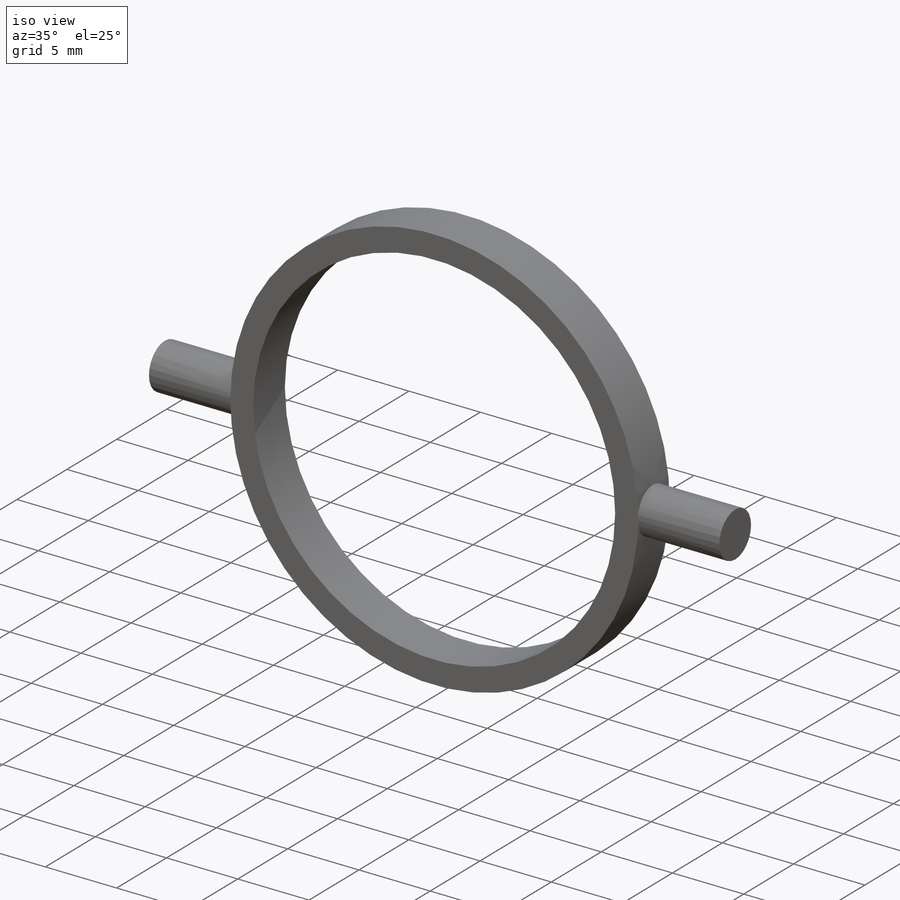
[diagram: iso view]
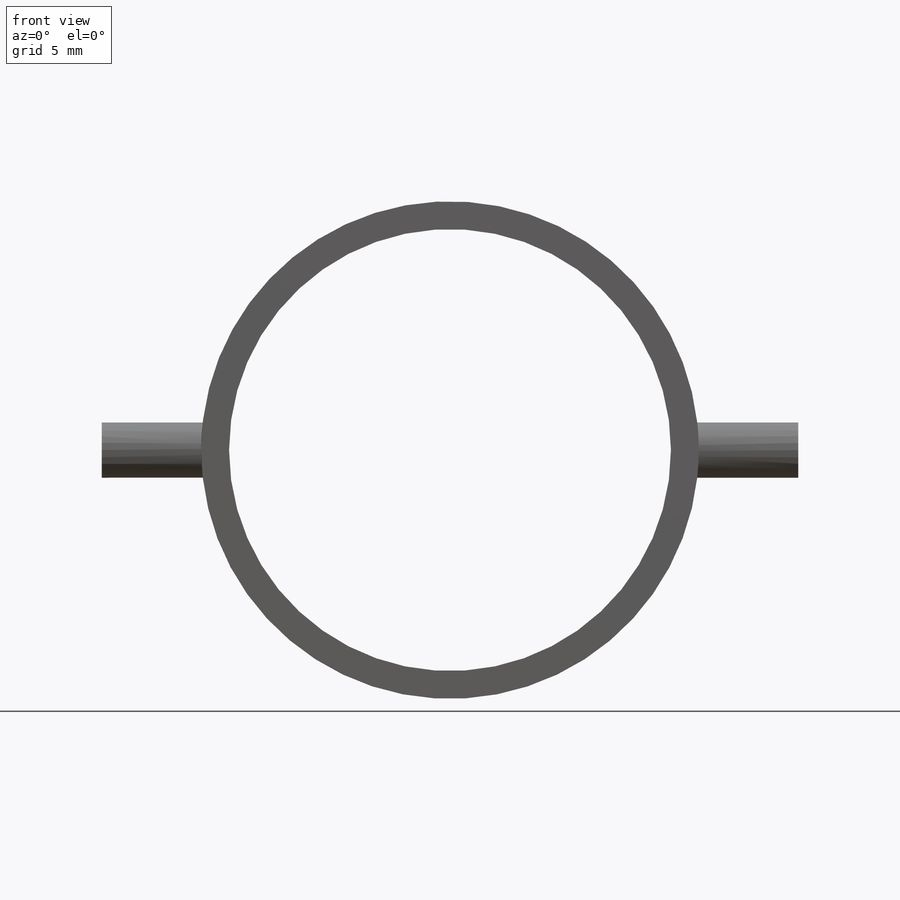
[diagram: front view]
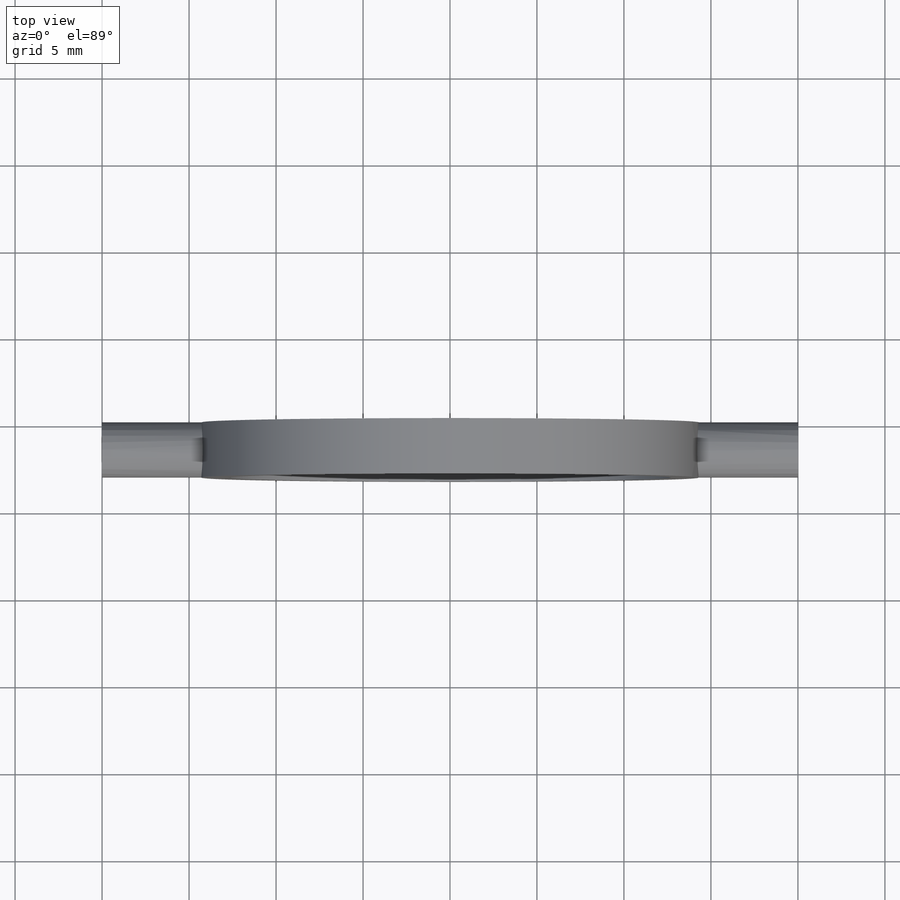
[diagram: top view]
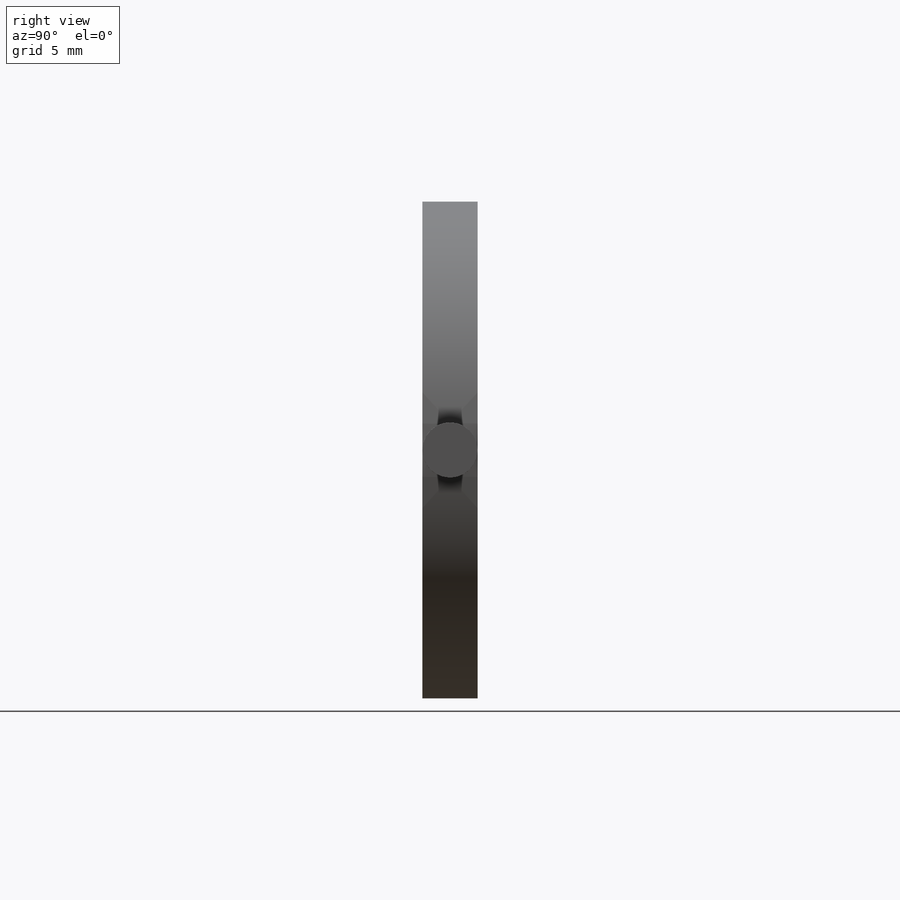
[diagram: right view]
SOLIDWORKS PART (.sldprt)
format: sldprt  version: not decoded by parser v0  size: 148,480 bytes
history: native  units: mm
features: sketch x2, extrude x2, material x1, plane x1, pattern_circular x1 (+11 scaffold rows collapsed)
feature tree (18):
  scaffold x11  (default folders/planes/origin — collapsed)
  material  "Material <not specified>"
  sketch  "Sketch1"  dims[c1.D1=~48.748239mm c1.D2=25.4mm c2.D1=1.6mm]
  extrude  "Boss-Extrude1"  Depth=3.175mm
  plane  "Plane1"
  sketch  "Sketch2"  dims[c1.D1=~1.867691mm c1.D2=~1.867691mm c2.D1=3.175mm]
  extrude  "Boss-Extrude2"  Depth=5.715mm
  pattern_circular  "CirPattern1"  Count=2 Angle=360deg
decode coverage: 5 of 5 modeling features carry decoded parameters
note: ~ marks probable driven/reference dimensions
note: suppression state not decoded; provenance and decode notes live in map.json
